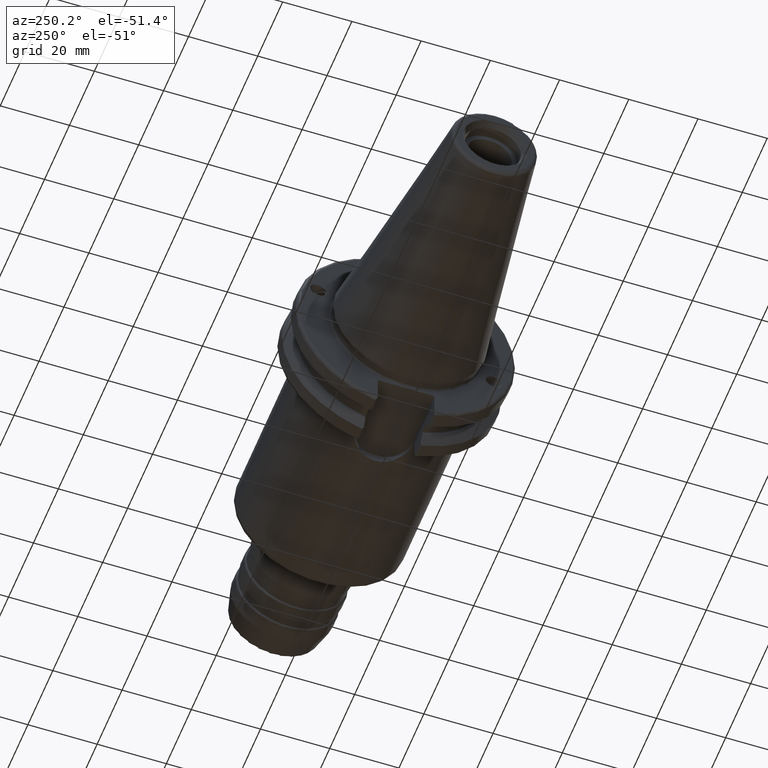
[diagram: clean part render]
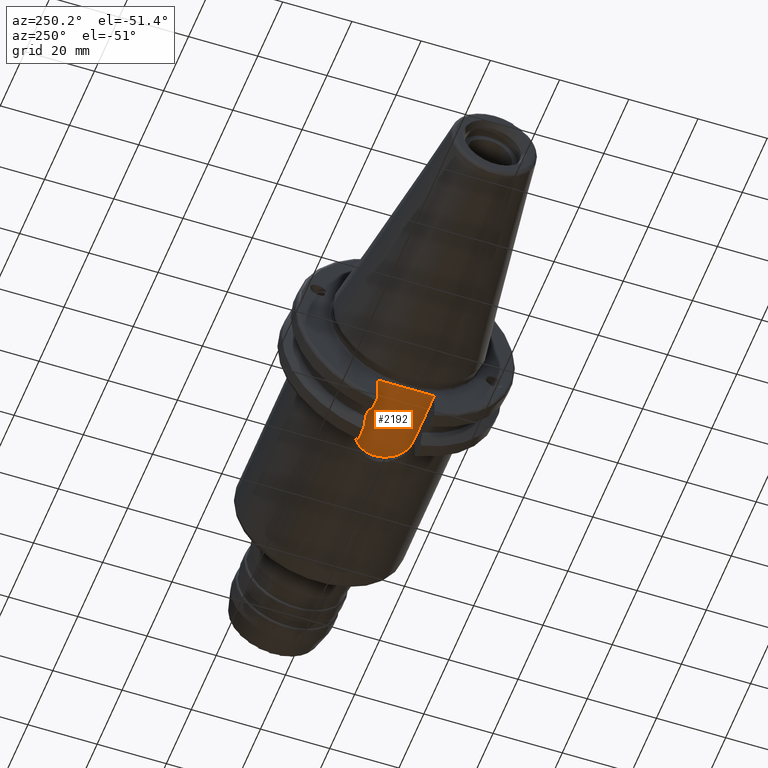
[diagram: same view with one face highlighted and labeled with its STEP entity id]
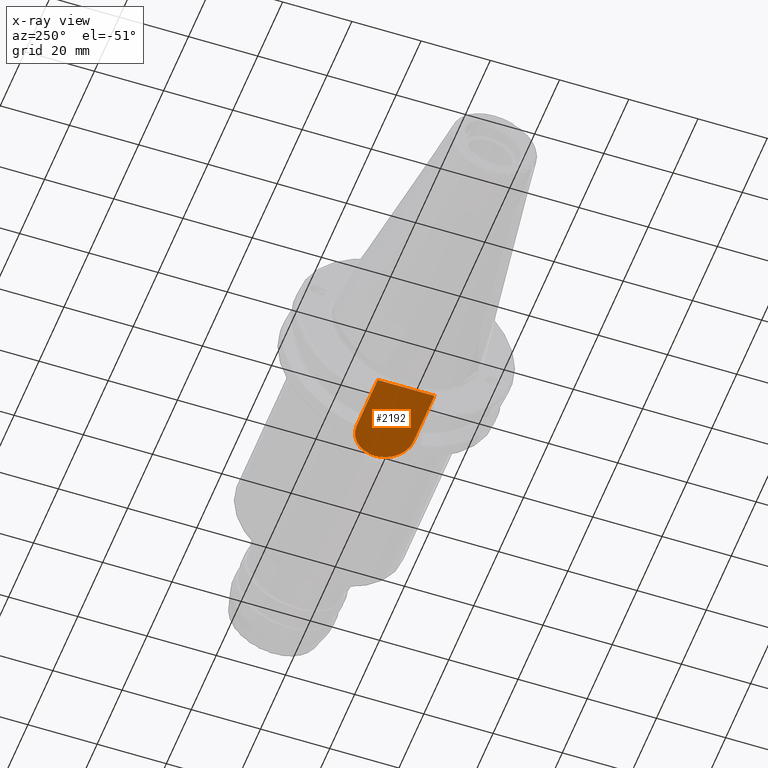
[diagram: x-ray of the same camera — body ghosted, the highlighted face saturated]
A machine part, auxiliary view. The second image highlights one B-rep face of the part: STEP entity #2192.
The next image is the same camera in x-ray: the body ghosted, the highlighted face saturated — about 0% of this face is hidden behind the body in this view.
In plain terms, the highlighted planar face has unit normal (0, 0, 1).
Its self-contained STEP definition (entity closure, byte-faithful):
#76=PLANE('',#2510);
#263=FACE_OUTER_BOUND('',#384,.T.);
#384=EDGE_LOOP('',(#1985,#1986,#1987,#1988));
#462=LINE('',#4009,#558);
#480=LINE('',#4147,#576);
#489=LINE('',#4241,#585);
#558=VECTOR('',#3073,10.);
#576=VECTOR('',#3113,10.);
#585=VECTOR('',#3172,10.);
#693=CIRCLE('',#2360,8.19);
#873=VERTEX_POINT('',#3623);
#874=VERTEX_POINT('',#3625);
#970=VERTEX_POINT('',#4006);
#971=VERTEX_POINT('',#4008);
#1151=EDGE_CURVE('',#874,#873,#693,.T.);
#1278=EDGE_CURVE('',#970,#971,#462,.T.);
#1315=EDGE_CURVE('',#873,#971,#480,.T.);
#1343=EDGE_CURVE('',#874,#970,#489,.T.);
#1985=ORIENTED_EDGE('',*,*,#1315,.T.);
#1986=ORIENTED_EDGE('',*,*,#1278,.F.);
#1987=ORIENTED_EDGE('',*,*,#1343,.F.);
#1988=ORIENTED_EDGE('',*,*,#1151,.T.);
#2192=ADVANCED_FACE('',(#263),#76,.F.);
#2360=AXIS2_PLACEMENT_3D('',#3626,#2825,#2826);
#2510=AXIS2_PLACEMENT_3D('',#4269,#3197,#3198);
#2825=DIRECTION('center_axis',(0.,0.,-1.));
#2826=DIRECTION('ref_axis',(5.42233467460394E-16,1.,0.));
#3073=DIRECTION('',(0.,-1.,0.));
#3113=DIRECTION('',(-1.,1.31581988103722E-16,0.));
#3172=DIRECTION('',(-1.,-1.31581988103722E-16,0.));
#3197=DIRECTION('center_axis',(0.,0.,1.));
#3198=DIRECTION('ref_axis',(1.,0.,0.));
#3623=CARTESIAN_POINT('',(20.05,-8.19,-22.6));
#3625=CARTESIAN_POINT('',(20.05,8.19,-22.6));
#3626=CARTESIAN_POINT('Origin',(20.05,0.,-22.6));
#4006=CARTESIAN_POINT('',(3.175,8.19,-22.6));
#4008=CARTESIAN_POINT('',(3.175,-8.19,-22.6));
#4009=CARTESIAN_POINT('',(3.175,15.875,-22.6));
#4147=CARTESIAN_POINT('',(20.05,-8.19,-22.6));
#4241=CARTESIAN_POINT('',(20.05,8.19,-22.6));
#4269=CARTESIAN_POINT('Origin',(15.7075,-5.55111512312578E-16,-22.6));